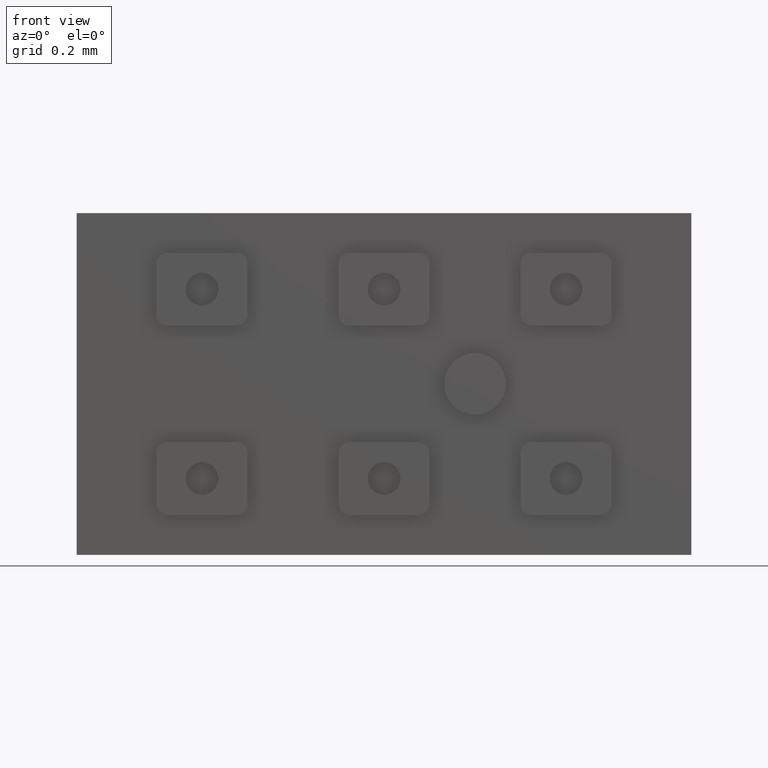
[diagram: clean part render]
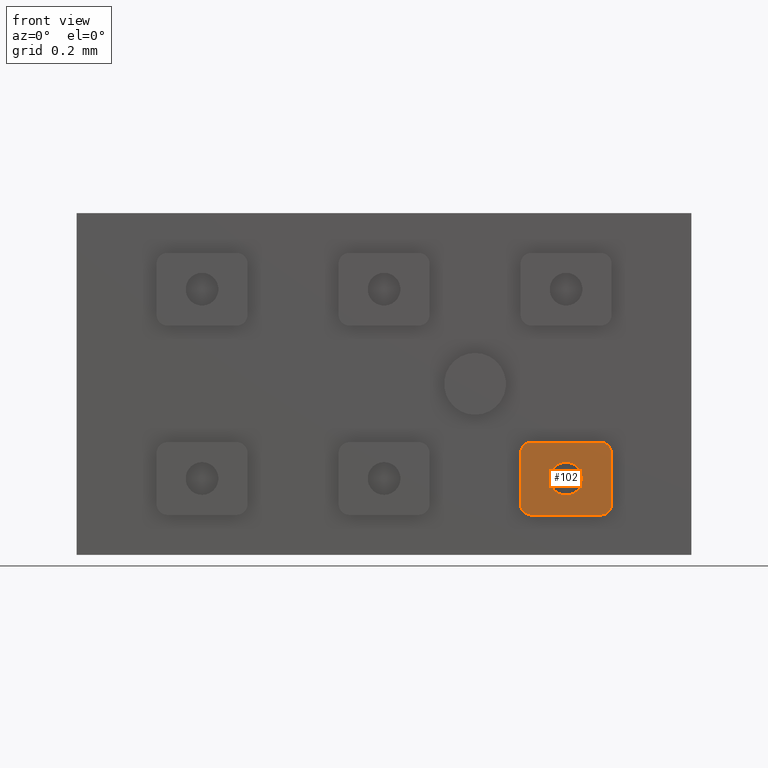
[diagram: same view with one face highlighted and labeled with its STEP entity id]
A machine part, front view. The second image highlights one B-rep face of the part: STEP entity #102.
In plain terms, the highlighted planar face has unit normal (0, 1, 0).
Its self-contained STEP definition (entity closure, byte-faithful):
#2 = AXIS2_PLACEMENT_3D ( 'NONE', #708, #2465, #1099 ) ;
#13 = CARTESIAN_POINT ( 'NONE',  ( 0.4049999999999999711, -0.2750000000000000222, -0.3599999999999999867 ) ) ;
#20 = ORIENTED_EDGE ( 'NONE', *, *, #1649, .F. ) ;
#84 = VECTOR ( 'NONE', #2222, 1000.000000000000000 ) ;
#102 = ADVANCED_FACE ( 'NONE', ( #1684, #294 ), #1427, .F. ) ;
#120 = CARTESIAN_POINT ( 'NONE',  ( 0.5000000000000000000, -0.2750000000000000222, -0.2600000000000000089 ) ) ;
#134 = CARTESIAN_POINT ( 'NONE',  ( 0.6250000000000001110, -0.2750000000000000222, -0.3300000000000000155 ) ) ;
#152 = VERTEX_POINT ( 'NONE', #2255 ) ;
#181 = VERTEX_POINT ( 'NONE', #2238 ) ;
#187 = ORIENTED_EDGE ( 'NONE', *, *, #749, .T. ) ;
#194 = EDGE_CURVE ( 'NONE', #925, #2206, #2084, .T. ) ;
#219 = ORIENTED_EDGE ( 'NONE', *, *, #608, .F. ) ;
#236 = LINE ( 'NONE', #1204, #2479 ) ;
#294 = FACE_OUTER_BOUND ( 'NONE', #2325, .T. ) ;
#340 = LINE ( 'NONE', #1754, #771 ) ;
#413 = VERTEX_POINT ( 'NONE', #825 ) ;
#427 = DIRECTION ( 'NONE',  ( 0.000000000000000000, 0.000000000000000000, 1.000000000000000000 ) ) ;
#471 = DIRECTION ( 'NONE',  ( 0.000000000000000000, 0.000000000000000000, 1.000000000000000000 ) ) ;
#529 = CARTESIAN_POINT ( 'NONE',  ( 0.5950000000000000844, -0.2750000000000000222, -0.3300000000000000155 ) ) ;
#544 = VERTEX_POINT ( 'NONE', #1987 ) ;
#545 = CARTESIAN_POINT ( 'NONE',  ( 0.5950000000000000844, -0.2750000000000000222, -0.3599999999999999867 ) ) ;
#552 = DIRECTION ( 'NONE',  ( 0.000000000000000000, 0.000000000000000000, 1.000000000000000000 ) ) ;
#608 = EDGE_CURVE ( 'NONE', #713, #181, #1789, .T. ) ;
#667 = AXIS2_PLACEMENT_3D ( 'NONE', #1889, #2089, #694 ) ;
#678 = DIRECTION ( 'NONE',  ( 0.000000000000000000, -0.000000000000000000, 1.000000000000000000 ) ) ;
#691 = AXIS2_PLACEMENT_3D ( 'NONE', #1438, #827, #427 ) ;
#694 = DIRECTION ( 'NONE',  ( 0.000000000000000000, 0.000000000000000000, 1.000000000000000000 ) ) ;
#708 = CARTESIAN_POINT ( 'NONE',  ( 0.5950000000000000844, -0.2750000000000000222, -0.1899999999999999467 ) ) ;
#713 = VERTEX_POINT ( 'NONE', #963 ) ;
#714 = DIRECTION ( 'NONE',  ( 0.000000000000000000, 0.000000000000000000, 1.000000000000000000 ) ) ;
#749 = EDGE_CURVE ( 'NONE', #413, #544, #1626, .T. ) ;
#771 = VECTOR ( 'NONE', #1975, 1000.000000000000000 ) ;
#807 = ORIENTED_EDGE ( 'NONE', *, *, #1143, .F. ) ;
#809 = LINE ( 'NONE', #2399, #84 ) ;
#825 = CARTESIAN_POINT ( 'NONE',  ( 0.5000000000000000000, -0.2750000000000000222, -0.3050000000000000488 ) ) ;
#827 = DIRECTION ( 'NONE',  ( 0.000000000000000000, 1.000000000000000000, 0.000000000000000000 ) ) ;
#836 = CARTESIAN_POINT ( 'NONE',  ( 0.3750000000000000000, -0.2750000000000000222, -0.3300000000000000155 ) ) ;
#925 = VERTEX_POINT ( 'NONE', #13 ) ;
#957 = AXIS2_PLACEMENT_3D ( 'NONE', #2513, #1726, #552 ) ;
#963 = CARTESIAN_POINT ( 'NONE',  ( 0.3750000000000000000, -0.2750000000000000222, -0.1899999999999999467 ) ) ;
#1059 = DIRECTION ( 'NONE',  ( 0.000000000000000000, 1.000000000000000000, 0.000000000000000000 ) ) ;
#1099 = DIRECTION ( 'NONE',  ( 0.000000000000000000, 0.000000000000000000, -1.000000000000000000 ) ) ;
#1143 = EDGE_CURVE ( 'NONE', #2072, #1196, #1735, .T. ) ;
#1161 = VERTEX_POINT ( 'NONE', #1300 ) ;
#1196 = VERTEX_POINT ( 'NONE', #545 ) ;
#1204 = CARTESIAN_POINT ( 'NONE',  ( 0.6250000000000001110, -0.2750000000000000222, -0.3300000000000000155 ) ) ;
#1226 = ORIENTED_EDGE ( 'NONE', *, *, #194, .F. ) ;
#1274 = CIRCLE ( 'NONE', #691, 0.04500000000000001221 ) ;
#1300 = CARTESIAN_POINT ( 'NONE',  ( 0.5950000000000000844, -0.2750000000000000222, -0.1599999999999999201 ) ) ;
#1334 = EDGE_LOOP ( 'NONE', ( #1530, #187 ) ) ;
#1409 = DIRECTION ( 'NONE',  ( -0.000000000000000000, -0.000000000000000000, -1.000000000000000000 ) ) ;
#1427 = PLANE ( 'NONE',  #2534 ) ;
#1438 = CARTESIAN_POINT ( 'NONE',  ( 0.5000000000000000000, -0.2750000000000000222, -0.2600000000000000089 ) ) ;
#1467 = LINE ( 'NONE', #2259, #1911 ) ;
#1521 = DIRECTION ( 'NONE',  ( 0.000000000000000000, 1.000000000000000000, 0.000000000000000000 ) ) ;
#1530 = ORIENTED_EDGE ( 'NONE', *, *, #1793, .T. ) ;
#1554 = ORIENTED_EDGE ( 'NONE', *, *, #2122, .F. ) ;
#1559 = DIRECTION ( 'NONE',  ( 0.000000000000000000, 0.000000000000000000, 1.000000000000000000 ) ) ;
#1626 = CIRCLE ( 'NONE', #2284, 0.04500000000000001221 ) ;
#1649 = EDGE_CURVE ( 'NONE', #1196, #925, #340, .T. ) ;
#1684 = FACE_BOUND ( 'NONE', #1334, .T. ) ;
#1696 = AXIS2_PLACEMENT_3D ( 'NONE', #529, #2125, #714 ) ;
#1726 = DIRECTION ( 'NONE',  ( 0.000000000000000000, 1.000000000000000000, 0.000000000000000000 ) ) ;
#1735 = CIRCLE ( 'NONE', #1696, 0.03000000000000002318 ) ;
#1754 = CARTESIAN_POINT ( 'NONE',  ( 0.4049999999999999711, -0.2750000000000000222, -0.3599999999999999867 ) ) ;
#1789 = CIRCLE ( 'NONE', #667, 0.02999999999999997113 ) ;
#1793 = EDGE_CURVE ( 'NONE', #544, #413, #1274, .T. ) ;
#1805 = ORIENTED_EDGE ( 'NONE', *, *, #2337, .F. ) ;
#1876 = EDGE_CURVE ( 'NONE', #1161, #152, #2242, .T. ) ;
#1889 = CARTESIAN_POINT ( 'NONE',  ( 0.4049999999999999711, -0.2750000000000000222, -0.1899999999999999467 ) ) ;
#1911 = VECTOR ( 'NONE', #471, 1000.000000000000000 ) ;
#1975 = DIRECTION ( 'NONE',  ( -1.000000000000000000, -0.000000000000000000, -0.000000000000000000 ) ) ;
#1987 = CARTESIAN_POINT ( 'NONE',  ( 0.5000000000000000000, -0.2750000000000000222, -0.2150000000000000244 ) ) ;
#2045 = CARTESIAN_POINT ( 'NONE',  ( 0.4049999999999999711, -0.2750000000000000222, -0.3300000000000000155 ) ) ;
#2072 = VERTEX_POINT ( 'NONE', #134 ) ;
#2084 = CIRCLE ( 'NONE', #957, 0.02999999999999997113 ) ;
#2089 = DIRECTION ( 'NONE',  ( 0.000000000000000000, 1.000000000000000000, 0.000000000000000000 ) ) ;
#2122 = EDGE_CURVE ( 'NONE', #152, #2072, #236, .T. ) ;
#2125 = DIRECTION ( 'NONE',  ( 0.000000000000000000, 1.000000000000000000, 0.000000000000000000 ) ) ;
#2185 = EDGE_CURVE ( 'NONE', #181, #1161, #809, .T. ) ;
#2206 = VERTEX_POINT ( 'NONE', #836 ) ;
#2222 = DIRECTION ( 'NONE',  ( 1.000000000000000000, 0.000000000000000000, 0.000000000000000000 ) ) ;
#2238 = CARTESIAN_POINT ( 'NONE',  ( 0.4049999999999999711, -0.2750000000000000222, -0.1599999999999999756 ) ) ;
#2242 = CIRCLE ( 'NONE', #2, 0.03000000000000002318 ) ;
#2255 = CARTESIAN_POINT ( 'NONE',  ( 0.6250000000000001110, -0.2750000000000000222, -0.1899999999999999467 ) ) ;
#2259 = CARTESIAN_POINT ( 'NONE',  ( 0.3750000000000000000, -0.2750000000000000222, -0.3300000000000000155 ) ) ;
#2284 = AXIS2_PLACEMENT_3D ( 'NONE', #120, #1521, #1559 ) ;
#2325 = EDGE_LOOP ( 'NONE', ( #1226, #20, #807, #1554, #2341, #2391, #219, #1805 ) ) ;
#2337 = EDGE_CURVE ( 'NONE', #2206, #713, #1467, .T. ) ;
#2341 = ORIENTED_EDGE ( 'NONE', *, *, #1876, .F. ) ;
#2391 = ORIENTED_EDGE ( 'NONE', *, *, #2185, .F. ) ;
#2399 = CARTESIAN_POINT ( 'NONE',  ( 0.4049999999999999711, -0.2750000000000000222, -0.1599999999999999756 ) ) ;
#2465 = DIRECTION ( 'NONE',  ( 0.000000000000000000, 1.000000000000000000, -0.000000000000000000 ) ) ;
#2479 = VECTOR ( 'NONE', #1409, 1000.000000000000000 ) ;
#2513 = CARTESIAN_POINT ( 'NONE',  ( 0.4049999999999999711, -0.2750000000000000222, -0.3300000000000000155 ) ) ;
#2534 = AXIS2_PLACEMENT_3D ( 'NONE', #2045, #1059, #678 ) ;